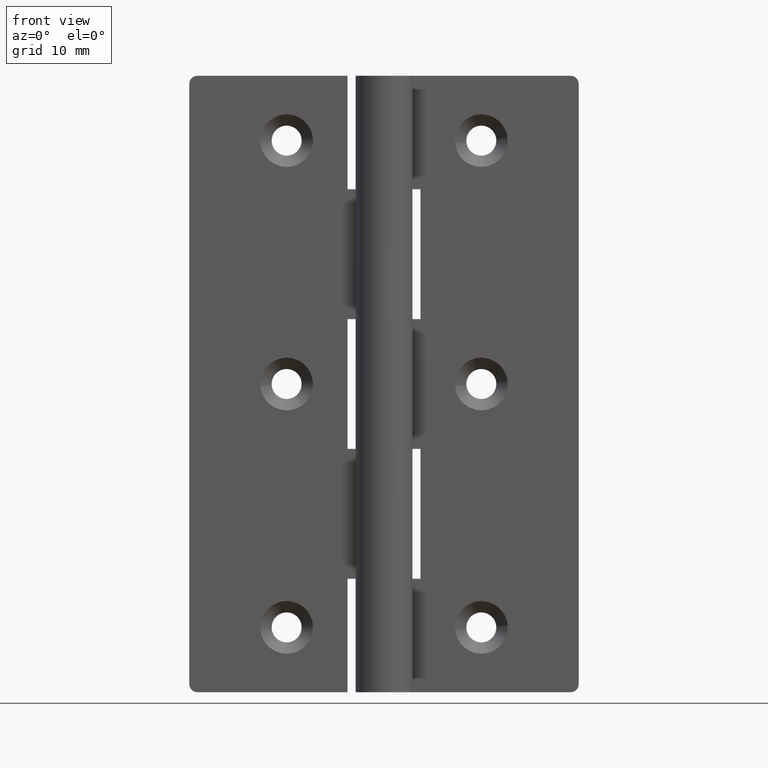
[diagram: clean part render]
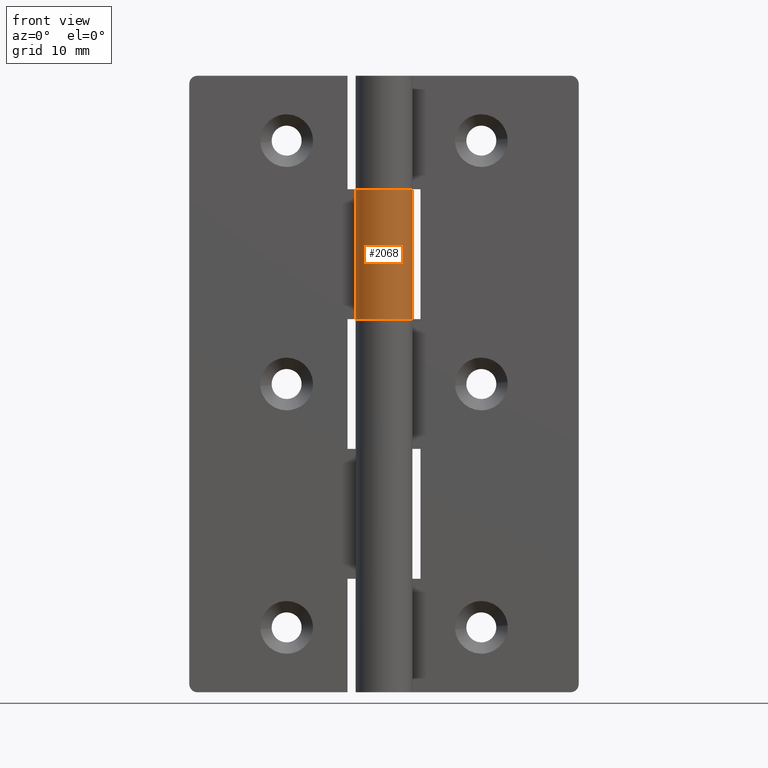
[diagram: same view with one face highlighted and labeled with its STEP entity id]
A machine part, front view. The second image highlights one B-rep face of the part: STEP entity #2068.
In plain terms, the highlighted face is a freeform B-spline surface patch.
Its self-contained STEP definition (entity closure, byte-faithful):
#1391=CARTESIAN_POINT('',(-2.906458325866720,1.950000000000000,62.000008000000101));
#1392=VERTEX_POINT('',#1391);
#1398=CARTESIAN_POINT('',(0.0,3.500000000000000,62.000008000000101));
#1399=VERTEX_POINT('',#1398);
#1400=CARTESIAN_POINT('',(0.0,3.500000000000000,62.000008000000101));
#1401=CARTESIAN_POINT('',(2.732759340469793,3.500000000000000,62.000008000000093));
#1402=CARTESIAN_POINT('',(3.395511382448716,0.848824158269078,62.000008000000101));
#1403=CARTESIAN_POINT('',(4.058263424427640,-1.802351683461844,62.000008000000093));
#1404=CARTESIAN_POINT('',(1.646966909200060,-3.088284313336453,62.000008000000101));
#1405=CARTESIAN_POINT('',(-0.764329606027519,-4.374216943211060,62.000008000000093));
#1406=CARTESIAN_POINT('',(-2.596662639363706,-2.346772919848171,62.000008000000101));
#1407=CARTESIAN_POINT('',(-4.428995672699895,-0.319328896485281,62.000008000000093));
#1408=CARTESIAN_POINT('',(-2.906458325866723,1.950000000000001,62.000008000000101));
#1416=(BOUNDED_CURVE()B_SPLINE_CURVE(2,(#1400,#1401,#1402,#1403,#1404,#1405,#1406,#1407,#1408),.UNSPECIFIED.,.F.,.U.)B_SPLINE_CURVE_WITH_KNOTS((3,2,2,2,3),(0.0,0.250000000000000,0.500000000000000,0.750000000000000,1.0),.UNSPECIFIED.)CURVE()GEOMETRIC_REPRESENTATION_ITEM()RATIONAL_B_SPLINE_CURVE((1.0,0.788200858942972,1.0,0.788200858942972,1.0,0.788200858942972,1.0,0.788200858942972,1.0))REPRESENTATION_ITEM(''));
#1417=EDGE_CURVE('',#1399,#1392,#1416,.T.);
#1532=CARTESIAN_POINT('',(0.0,3.499999999999950,46.000008000000101));
#1533=VERTEX_POINT('',#1532);
#1539=CARTESIAN_POINT('',(-2.906458325866720,1.950000000000000,46.000008000000200));
#1540=VERTEX_POINT('',#1539);
#1541=CARTESIAN_POINT('',(0.0,3.499999999999950,46.000008000000101));
#1542=CARTESIAN_POINT('',(2.732759340469793,3.500000000000000,46.000008000000200));
#1543=CARTESIAN_POINT('',(3.395511382448716,0.848824158269078,46.000008000000200));
#1544=CARTESIAN_POINT('',(4.058263424427640,-1.802351683461844,46.000008000000200));
#1545=CARTESIAN_POINT('',(1.646966909200060,-3.088284313336453,46.000008000000200));
#1546=CARTESIAN_POINT('',(-0.764329606027519,-4.374216943211060,46.000008000000200));
#1547=CARTESIAN_POINT('',(-2.596662639363706,-2.346772919848171,46.000008000000200));
#1548=CARTESIAN_POINT('',(-4.428995672699895,-0.319328896485281,46.000008000000200));
#1549=CARTESIAN_POINT('',(-2.906458325866723,1.950000000000001,46.000008000000200));
#1557=(BOUNDED_CURVE()B_SPLINE_CURVE(2,(#1541,#1542,#1543,#1544,#1545,#1546,#1547,#1548,#1549),.UNSPECIFIED.,.F.,.U.)B_SPLINE_CURVE_WITH_KNOTS((3,2,2,2,3),(0.0,0.250000000000000,0.500000000000000,0.750000000000000,1.0),.UNSPECIFIED.)CURVE()GEOMETRIC_REPRESENTATION_ITEM()RATIONAL_B_SPLINE_CURVE((1.0,0.788200858942972,1.0,0.788200858942972,1.0,0.788200858942972,1.0,0.788200858942972,1.0))REPRESENTATION_ITEM(''));
#1558=EDGE_CURVE('',#1533,#1540,#1557,.T.);
#1992=CARTESIAN_POINT('',(-2.906458325866720,1.950000000000000,46.000008000000200));
#1993=CARTESIAN_POINT('',(-2.906458325866720,1.950000000000000,62.000008000000101));
#1994=QUASI_UNIFORM_CURVE('',1,(#1992,#1993),.UNSPECIFIED.,.F.,.U.);
#1995=EDGE_CURVE('',#1540,#1392,#1994,.T.);
#2036=CARTESIAN_POINT('',(-0.030542874244306,3.499866730724598,45.600008000000102));
#2037=CARTESIAN_POINT('',(-0.030542874244306,3.499866730724598,62.410008000000097));
#2038=CARTESIAN_POINT('',(4.317231317146725,3.537809181276936,45.600008000000102));
#2039=CARTESIAN_POINT('',(4.317231317146725,3.537809181276936,62.410008000000111));
#2040=CARTESIAN_POINT('',(3.425618882463447,-0.717729247077107,45.600008000000102));
#2041=CARTESIAN_POINT('',(3.425618882463447,-0.717729247077107,62.410008000000097));
#2042=CARTESIAN_POINT('',(2.534006447780170,-4.973267675431151,45.600008000000102));
#2043=CARTESIAN_POINT('',(2.534006447780170,-4.973267675431151,62.410008000000111));
#2044=CARTESIAN_POINT('',(-1.432873100841322,-3.193254558735548,45.600008000000102));
#2045=CARTESIAN_POINT('',(-1.432873100841322,-3.193254558735548,62.410008000000097));
#2046=CARTESIAN_POINT('',(-5.399752649462814,-1.413241442039946,45.600008000000102));
#2047=CARTESIAN_POINT('',(-5.399752649462814,-1.413241442039946,62.410008000000111));
#2048=CARTESIAN_POINT('',(-2.813499012160261,2.081879753629691,45.600008000000102));
#2049=CARTESIAN_POINT('',(-2.813499012160261,2.081879753629691,62.410008000000097));
#2057=(BOUNDED_SURFACE()B_SPLINE_SURFACE(1,2,((#2036,#2038,#2040,#2042,#2044,#2046,#2048),(#2037,#2039,#2041,#2043,#2045,#2047,#2049)),.UNSPECIFIED.,.F.,.F.,.U.)B_SPLINE_SURFACE_WITH_KNOTS((2,2),(3,2,2,3),(0.0,16.810000000000009),(0.0,6.702669511647942,13.405339023295880,20.108008534943831),.UNSPECIFIED.)GEOMETRIC_REPRESENTATION_ITEM()RATIONAL_B_SPLINE_SURFACE(((1.0,0.627057105746662,1.0,0.627057105746662,1.0,0.627057105746662,1.0),(1.0,0.627057105746662,1.0,0.627057105746662,1.0,0.627057105746662,1.0)))REPRESENTATION_ITEM('')SURFACE());
#2058=CARTESIAN_POINT('',(0.0,3.499999999999950,46.000008000000101));
#2059=CARTESIAN_POINT('',(0.0,3.500000000000000,62.000008000000101));
#2060=QUASI_UNIFORM_CURVE('',1,(#2058,#2059),.UNSPECIFIED.,.F.,.U.);
#2061=EDGE_CURVE('',#1533,#1399,#2060,.T.);
#2062=ORIENTED_EDGE('',*,*,#2061,.T.);
#2063=ORIENTED_EDGE('',*,*,#1417,.T.);
#2064=ORIENTED_EDGE('',*,*,#1995,.F.);
#2065=ORIENTED_EDGE('',*,*,#1558,.F.);
#2066=EDGE_LOOP('',(#2062,#2063,#2064,#2065));
#2067=FACE_OUTER_BOUND('',#2066,.T.);
#2068=ADVANCED_FACE('',(#2067),#2057,.T.);